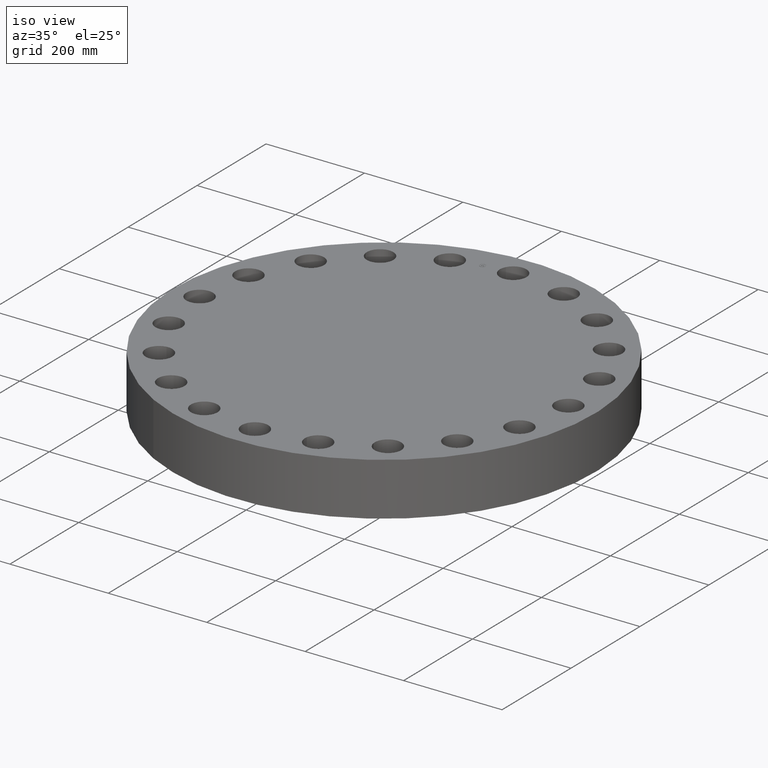
[diagram: clean part render]
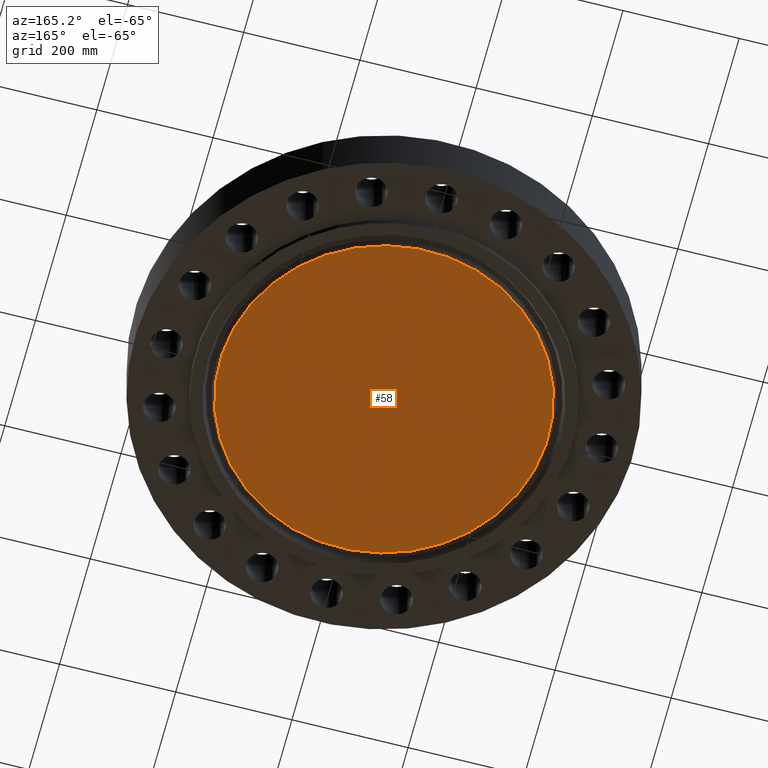
[diagram: tour spotlight — one face highlighted and labeled with its STEP entity id]
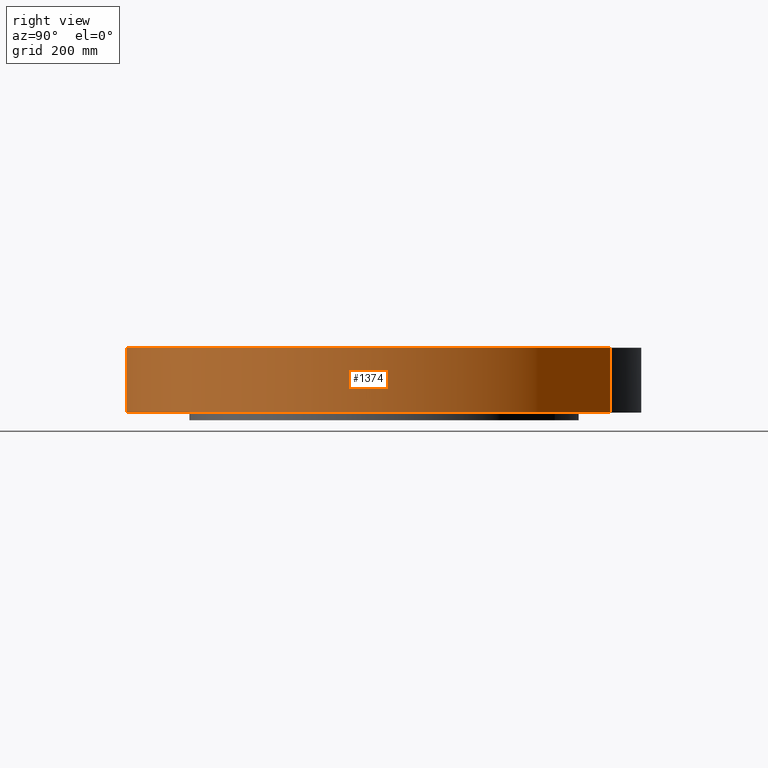
[diagram: tour spotlight — one face highlighted and labeled with its STEP entity id]
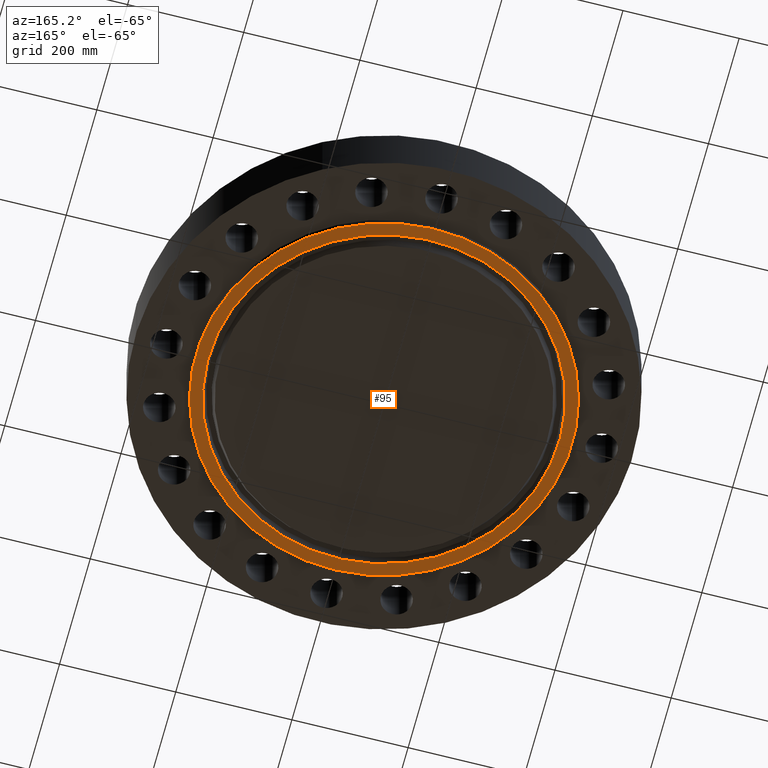
[diagram: tour spotlight — one face highlighted and labeled with its STEP entity id]
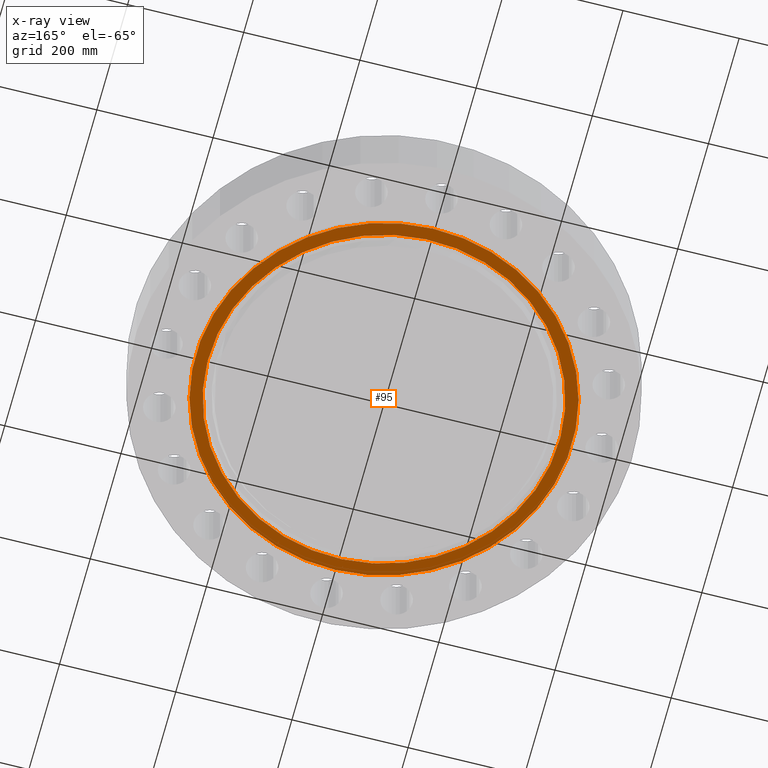
[diagram: x-ray of the same camera — body ghosted, this tour face saturated]
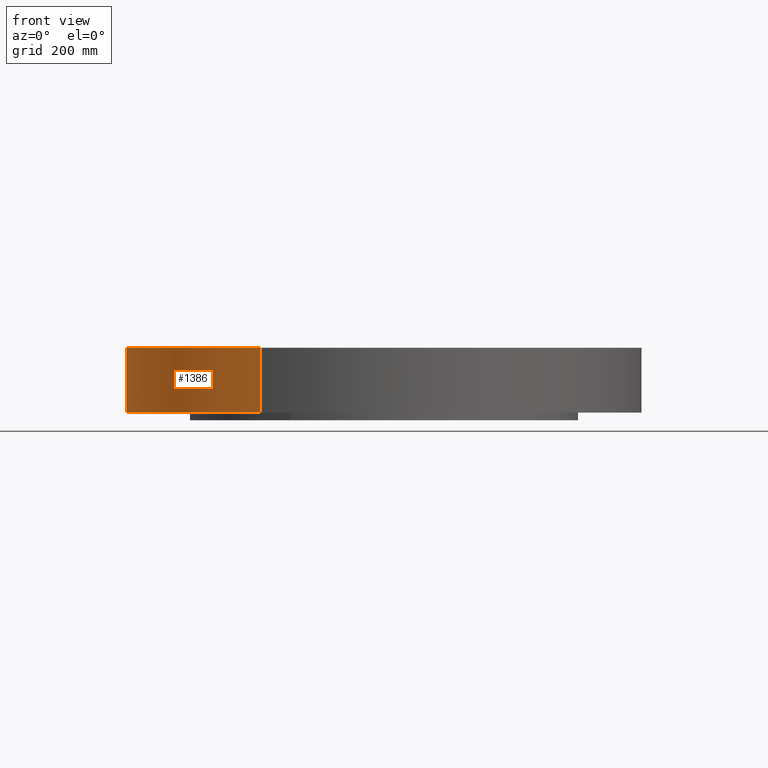
[diagram: tour spotlight — one face highlighted and labeled with its STEP entity id]
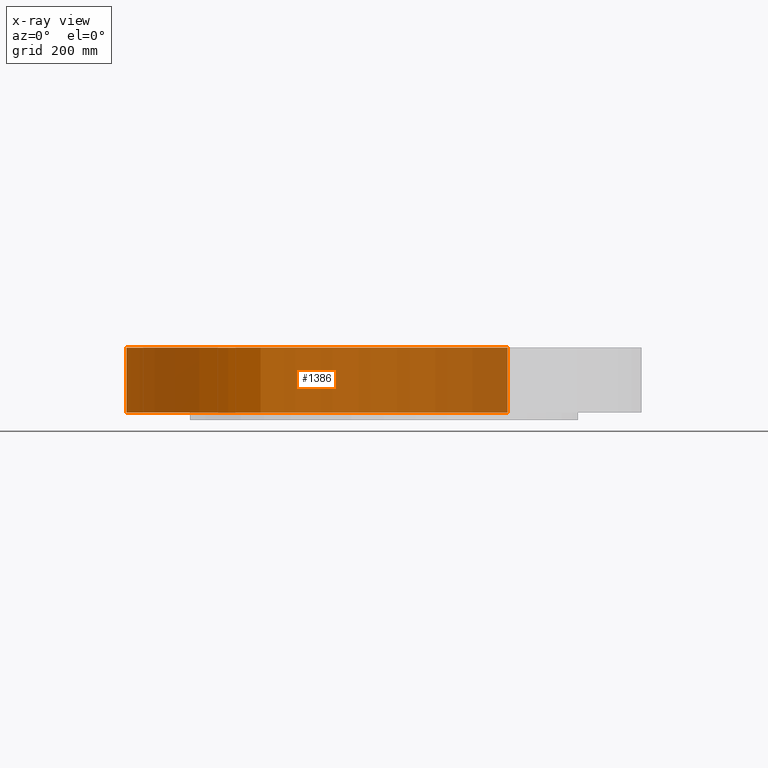
[diagram: x-ray of the same camera — body ghosted, this tour face saturated]
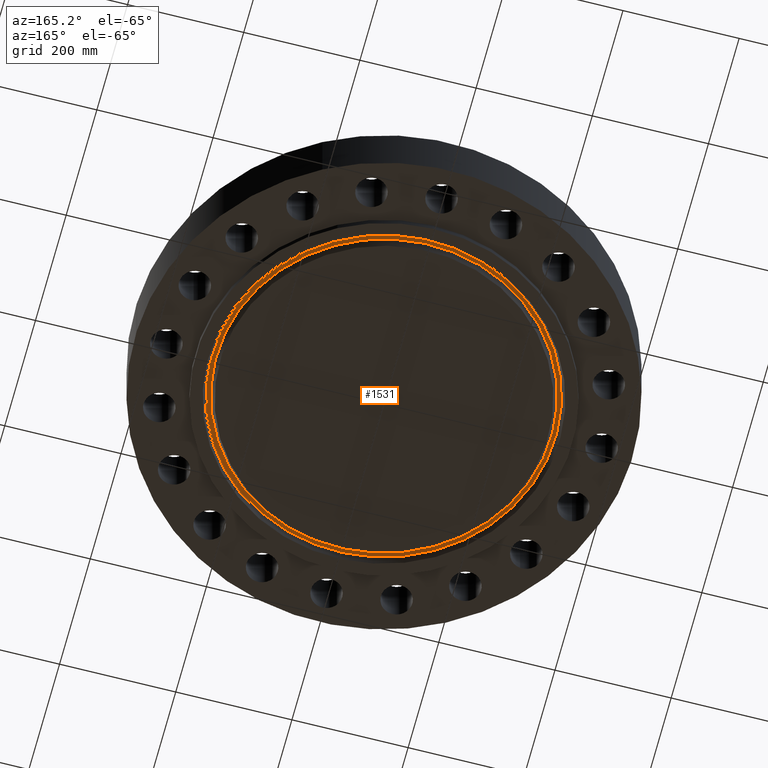
[diagram: tour spotlight — one face highlighted and labeled with its STEP entity id]
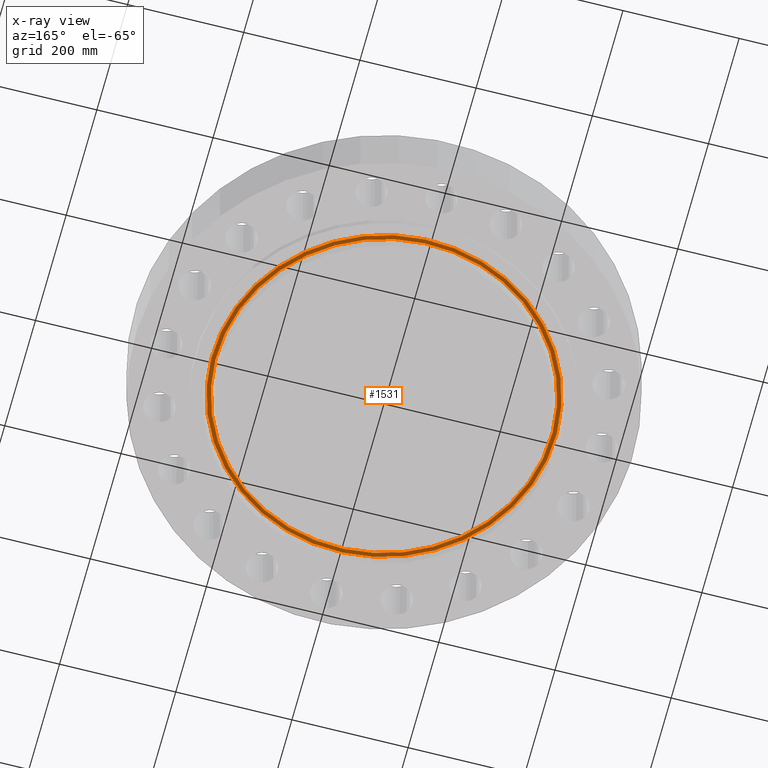
[diagram: x-ray of the same camera — body ghosted, this tour face saturated]
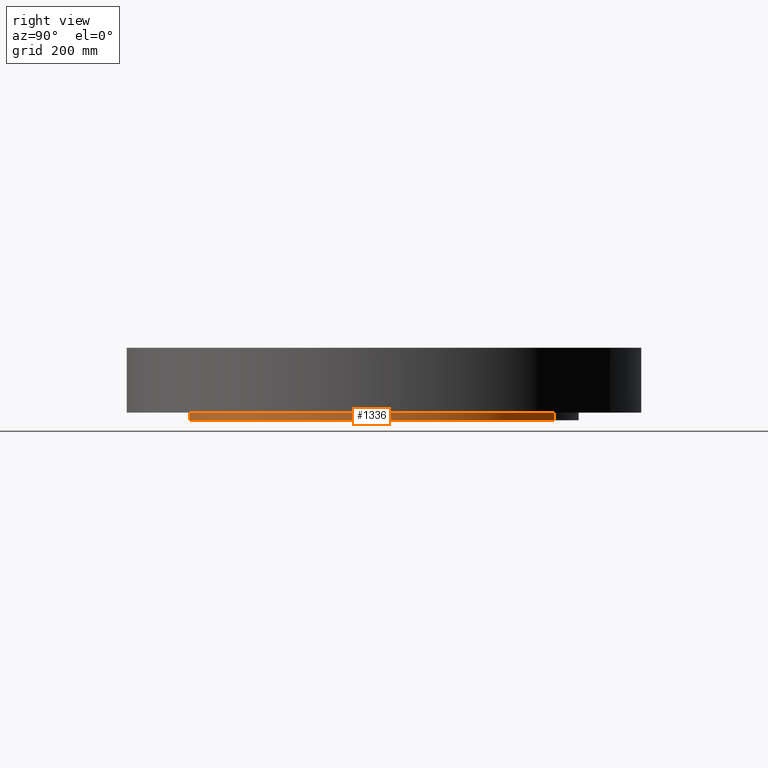
[diagram: tour spotlight — one face highlighted and labeled with its STEP entity id]
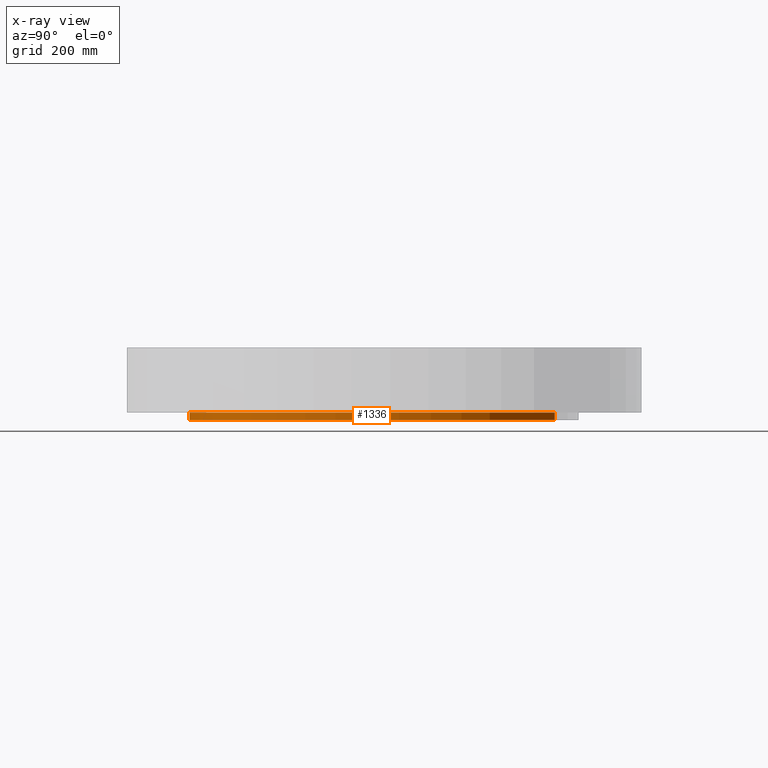
[diagram: x-ray of the same camera — body ghosted, this tour face saturated]
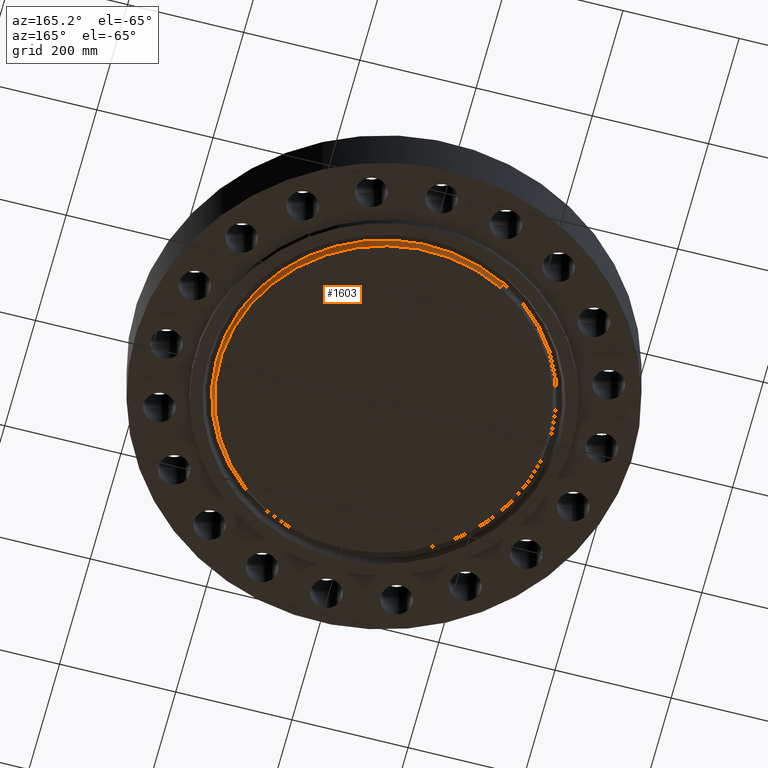
[diagram: tour spotlight — one face highlighted and labeled with its STEP entity id]
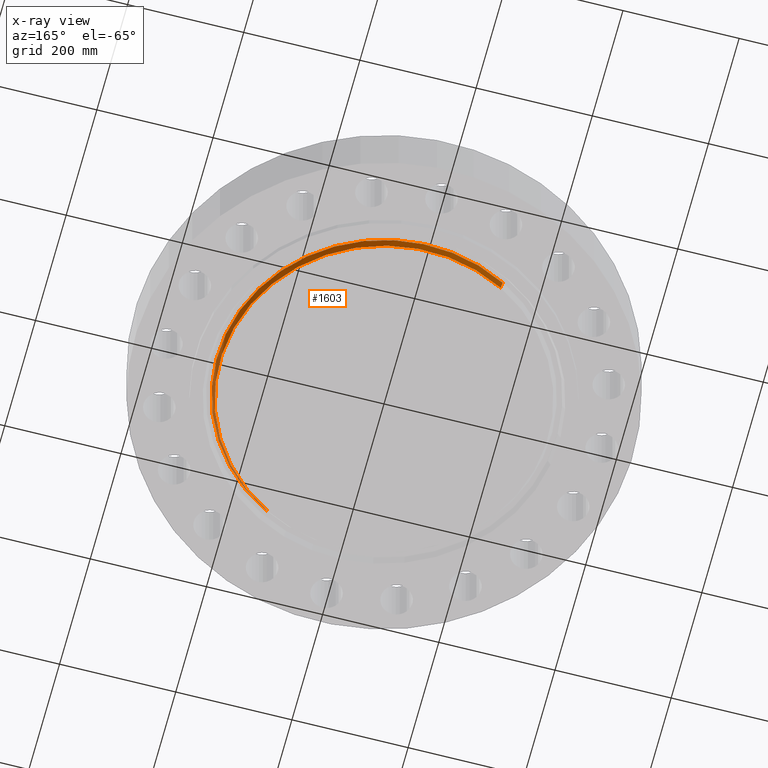
[diagram: x-ray of the same camera — body ghosted, this tour face saturated]
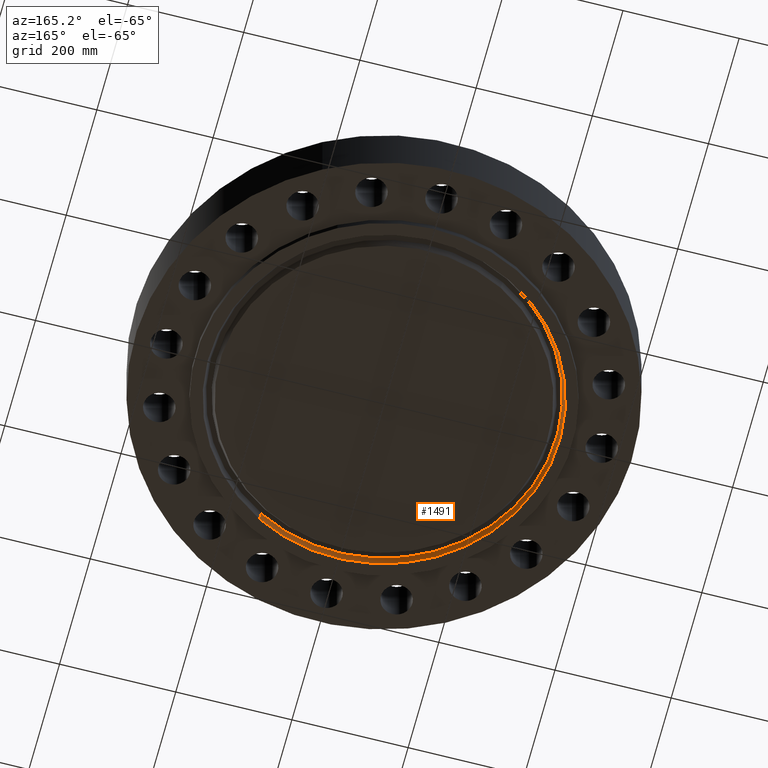
[diagram: tour spotlight — one face highlighted and labeled with its STEP entity id]
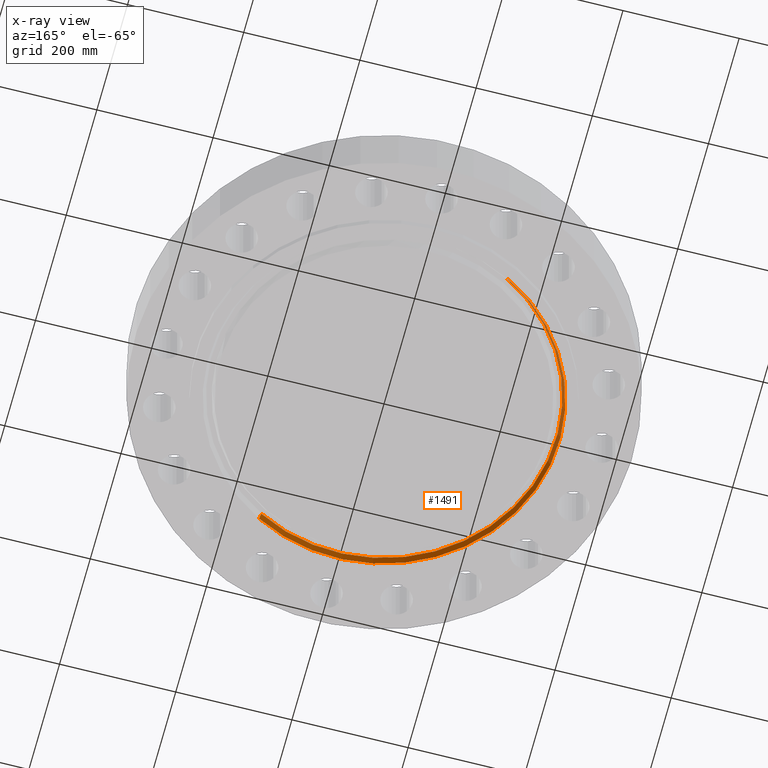
[diagram: x-ray of the same camera — body ghosted, this tour face saturated]
A machine part: a face-by-face anatomy tour. The part has 442 B-rep faces; the first image is the clean iso view, then the 8 largest visible faces are spotlighted one at a time (largest first), each with its STEP entity span.

Face 1 — auxiliary view, entity #58. In plain terms, the highlighted planar face has unit normal (0, 0, -1).
Definition (entity closure, byte-faithful):
#38=AXIS2_PLACEMENT_3D('Plane Axis2P3D',#35,#36,#37) ;
#42=AXIS2_PLACEMENT_3D('Circle Axis2P3D',#40,#41,$) ;
#51=AXIS2_PLACEMENT_3D('Circle Axis2P3D',#49,#50,$) ;
#35=CARTESIAN_POINT('Axis2P3D Location',(0.,0.,-0.500000000002)) ;
#40=CARTESIAN_POINT('Axis2P3D Location',(0.,-2.79741234551E-016,-0.500000000002)) ;
#44=CARTESIAN_POINT('Vertex',(-5.32610610731,9.74937183398,-0.500000000002)) ;
#46=CARTESIAN_POINT('Vertex',(5.32610610731,-9.74937183398,-0.500000000002)) ;
#49=CARTESIAN_POINT('Axis2P3D Location',(2.23792987641E-015,-8.39223703654E-016,-0.500000000002)) ;
#36=DIRECTION('Axis2P3D Direction',(0.,0.,-0.0393700787402)) ;
#37=DIRECTION('Axis2P3D XDirection',(0.0393700787402,0.,0.)) ;
#41=DIRECTION('Axis2P3D Direction',(0.,0.,-0.0393700787402)) ;
#50=DIRECTION('Axis2P3D Direction',(0.,0.,-0.0393700787402)) ;
#55=ORIENTED_EDGE('',*,*,#48,.T.) ;
#56=ORIENTED_EDGE('',*,*,#53,.T.) ;
#58=ADVANCED_FACE('PartBody',(#57),#39,.T.) ;
#43=CIRCLE('generated circle',#42,11.10935) ;
#52=CIRCLE('generated circle',#51,11.10935) ;
#48=EDGE_CURVE('',#45,#47,#43,.T.) ;
#53=EDGE_CURVE('',#47,#45,#52,.T.) ;
#54=EDGE_LOOP('',(#55,#56)) ;
#57=FACE_OUTER_BOUND('',#54,.T.) ;
#39=PLANE('',#38) ;
#45=VERTEX_POINT('',#44) ;
#47=VERTEX_POINT('',#46) ;

Face 2 — right view, entity #1374. In plain terms, the highlighted cylindrical surface (partial cylindrical patch) has radius 428.625 mm, axis along (0, 0, -1).
Definition (entity closure, byte-faithful):
#1195=AXIS2_PLACEMENT_3D('Circle Axis2P3D',#1193,#1194,$) ;
#1347=AXIS2_PLACEMENT_3D('Cylinder Axis2P3D',#1344,#1345,#1346) ;
#1358=AXIS2_PLACEMENT_3D('Circle Axis2P3D',#1356,#1357,$) ;
#1188=CARTESIAN_POINT('Vertex',(-8.09030596398,-14.809205732,1.95818864186E-015)) ;
#1190=CARTESIAN_POINT('Vertex',(8.09030596398,14.809205732,1.95818864186E-015)) ;
#1193=CARTESIAN_POINT('Axis2P3D Location',(0.,0.,0.)) ;
#1344=CARTESIAN_POINT('Axis2P3D Location',(0.,0.,1.87500000001)) ;
#1349=CARTESIAN_POINT('Line Origine',(8.09030596398,14.809205732,2.12500000001)) ;
#1353=CARTESIAN_POINT('Vertex',(8.09030596398,14.809205732,4.25000000002)) ;
#1356=CARTESIAN_POINT('Axis2P3D Location',(0.,0.,4.25000000002)) ;
#1360=CARTESIAN_POINT('Vertex',(-8.09030596398,-14.809205732,4.25000000002)) ;
#1363=CARTESIAN_POINT('Line Origine',(-8.09030596398,-14.809205732,2.12500000001)) ;
#1194=DIRECTION('Axis2P3D Direction',(0.,0.,-0.0393700787402)) ;
#1345=DIRECTION('Axis2P3D Direction',(0.,0.,-0.0393700787402)) ;
#1346=DIRECTION('Axis2P3D XDirection',(-0.0188750212049,-0.0345504945626,0.)) ;
#1350=DIRECTION('Vector Direction',(0.,0.,-0.0393700787402)) ;
#1357=DIRECTION('Axis2P3D Direction',(0.,0.,-0.0393700787402)) ;
#1364=DIRECTION('Vector Direction',(0.,0.,-0.0393700787402)) ;
#1351=VECTOR('Line Direction',#1350,0.0393700787402) ;
#1365=VECTOR('Line Direction',#1364,0.0393700787402) ;
#1369=ORIENTED_EDGE('',*,*,#1197,.F.) ;
#1370=ORIENTED_EDGE('',*,*,#1355,.T.) ;
#1371=ORIENTED_EDGE('',*,*,#1362,.T.) ;
#1372=ORIENTED_EDGE('',*,*,#1367,.F.) ;
#1374=ADVANCED_FACE('PartBody',(#1373),#1348,.T.) ;
#1196=CIRCLE('generated circle',#1195,16.8750000001) ;
#1359=CIRCLE('generated circle',#1358,16.8750000001) ;
#1348=CYLINDRICAL_SURFACE('generated cylinder',#1347,16.8750000001) ;
#1197=EDGE_CURVE('',#1191,#1189,#1196,.T.) ;
#1355=EDGE_CURVE('',#1191,#1354,#1352,.F.) ;
#1362=EDGE_CURVE('',#1354,#1361,#1359,.T.) ;
#1367=EDGE_CURVE('',#1189,#1361,#1366,.F.) ;
#1368=EDGE_LOOP('',(#1369,#1370,#1371,#1372)) ;
#1373=FACE_OUTER_BOUND('',#1368,.T.) ;
#1352=LINE('Line',#1349,#1351) ;
#1366=LINE('Line',#1363,#1365) ;
#1189=VERTEX_POINT('',#1188) ;
#1191=VERTEX_POINT('',#1190) ;
#1354=VERTEX_POINT('',#1353) ;
#1361=VERTEX_POINT('',#1360) ;

Face 3 — auxiliary view, entity #95. An x-ray twin of the same camera follows (body ghosted, this face saturated) — the face is partly hidden behind the body. In plain terms, the highlighted planar face has unit normal (0, 0, -1).
Definition (entity closure, byte-faithful):
#38=AXIS2_PLACEMENT_3D('Plane Axis2P3D',#35,#36,#37) ;
#61=AXIS2_PLACEMENT_3D('Circle Axis2P3D',#59,#60,$) ;
#70=AXIS2_PLACEMENT_3D('Circle Axis2P3D',#68,#69,$) ;
#79=AXIS2_PLACEMENT_3D('Circle Axis2P3D',#77,#78,$) ;
#88=AXIS2_PLACEMENT_3D('Circle Axis2P3D',#86,#87,$) ;
#35=CARTESIAN_POINT('Axis2P3D Location',(0.,0.,-0.500000000002)) ;
#59=CARTESIAN_POINT('Axis2P3D Location',(0.,0.,-0.500000000002)) ;
#63=CARTESIAN_POINT('Vertex',(6.11267561723,11.1891776641,-0.500000000002)) ;
#65=CARTESIAN_POINT('Vertex',(-6.11267561723,-11.1891776641,-0.500000000002)) ;
#68=CARTESIAN_POINT('Axis2P3D Location',(0.,0.,-0.500000000002)) ;
#77=CARTESIAN_POINT('Axis2P3D Location',(8.39223703654E-016,2.23792987641E-015,-0.500000000002)) ;
#81=CARTESIAN_POINT('Vertex',(5.70068128063,-10.4350270896,-0.500000000002)) ;
#83=CARTESIAN_POINT('Vertex',(-5.70068128063,10.4350270896,-0.500000000002)) ;
#86=CARTESIAN_POINT('Axis2P3D Location',(2.23792987641E-015,6.71378962923E-015,-0.500000000002)) ;
#36=DIRECTION('Axis2P3D Direction',(0.,0.,-0.0393700787402)) ;
#37=DIRECTION('Axis2P3D XDirection',(0.0393700787402,0.,0.)) ;
#60=DIRECTION('Axis2P3D Direction',(0.,0.,-0.0393700787402)) ;
#69=DIRECTION('Axis2P3D Direction',(0.,0.,-0.0393700787402)) ;
#78=DIRECTION('Axis2P3D Direction',(0.,0.,-0.0393700787402)) ;
#87=DIRECTION('Axis2P3D Direction',(0.,0.,-0.0393700787402)) ;
#74=ORIENTED_EDGE('',*,*,#67,.T.) ;
#75=ORIENTED_EDGE('',*,*,#72,.T.) ;
#92=ORIENTED_EDGE('',*,*,#85,.F.) ;
#93=ORIENTED_EDGE('',*,*,#90,.F.) ;
#94=FACE_BOUND('',#91,.T.) ;
#95=ADVANCED_FACE('PartBody',(#76,#94),#39,.T.) ;
#62=CIRCLE('generated circle',#61,12.7500000001) ;
#71=CIRCLE('generated circle',#70,12.7500000001) ;
#80=CIRCLE('generated circle',#79,11.89065) ;
#89=CIRCLE('generated circle',#88,11.89065) ;
#67=EDGE_CURVE('',#64,#66,#62,.T.) ;
#72=EDGE_CURVE('',#66,#64,#71,.T.) ;
#85=EDGE_CURVE('',#82,#84,#80,.T.) ;
#90=EDGE_CURVE('',#84,#82,#89,.T.) ;
#73=EDGE_LOOP('',(#74,#75)) ;
#91=EDGE_LOOP('',(#92,#93)) ;
#76=FACE_OUTER_BOUND('',#73,.T.) ;
#39=PLANE('',#38) ;
#64=VERTEX_POINT('',#63) ;
#66=VERTEX_POINT('',#65) ;
#82=VERTEX_POINT('',#81) ;
#84=VERTEX_POINT('',#83) ;

Face 4 — front view, entity #1386. An x-ray twin of the same camera follows (body ghosted, this face saturated) — the face is partly hidden behind the body. In plain terms, the highlighted cylindrical surface (partial cylindrical patch) has radius 428.625 mm, axis along (0, 0, -1).
Definition (entity closure, byte-faithful):
#1186=AXIS2_PLACEMENT_3D('Circle Axis2P3D',#1184,#1185,$) ;
#1347=AXIS2_PLACEMENT_3D('Cylinder Axis2P3D',#1344,#1345,#1346) ;
#1377=AXIS2_PLACEMENT_3D('Circle Axis2P3D',#1375,#1376,$) ;
#1184=CARTESIAN_POINT('Axis2P3D Location',(0.,0.,0.)) ;
#1188=CARTESIAN_POINT('Vertex',(-8.09030596398,-14.809205732,1.95818864186E-015)) ;
#1190=CARTESIAN_POINT('Vertex',(8.09030596398,14.809205732,1.95818864186E-015)) ;
#1344=CARTESIAN_POINT('Axis2P3D Location',(0.,0.,1.87500000001)) ;
#1349=CARTESIAN_POINT('Line Origine',(8.09030596398,14.809205732,2.12500000001)) ;
#1353=CARTESIAN_POINT('Vertex',(8.09030596398,14.809205732,4.25000000002)) ;
#1360=CARTESIAN_POINT('Vertex',(-8.09030596398,-14.809205732,4.25000000002)) ;
#1363=CARTESIAN_POINT('Line Origine',(-8.09030596398,-14.809205732,2.12500000001)) ;
#1375=CARTESIAN_POINT('Axis2P3D Location',(0.,0.,4.25000000002)) ;
#1185=DIRECTION('Axis2P3D Direction',(0.,0.,-0.0393700787402)) ;
#1345=DIRECTION('Axis2P3D Direction',(0.,0.,-0.0393700787402)) ;
#1346=DIRECTION('Axis2P3D XDirection',(-0.0188750212049,-0.0345504945626,0.)) ;
#1350=DIRECTION('Vector Direction',(0.,0.,-0.0393700787402)) ;
#1364=DIRECTION('Vector Direction',(0.,0.,-0.0393700787402)) ;
#1376=DIRECTION('Axis2P3D Direction',(0.,0.,-0.0393700787402)) ;
#1351=VECTOR('Line Direction',#1350,0.0393700787402) ;
#1365=VECTOR('Line Direction',#1364,0.0393700787402) ;
#1381=ORIENTED_EDGE('',*,*,#1192,.F.) ;
#1382=ORIENTED_EDGE('',*,*,#1367,.T.) ;
#1383=ORIENTED_EDGE('',*,*,#1379,.T.) ;
#1384=ORIENTED_EDGE('',*,*,#1355,.F.) ;
#1386=ADVANCED_FACE('PartBody',(#1385),#1348,.T.) ;
#1187=CIRCLE('generated circle',#1186,16.8750000001) ;
#1378=CIRCLE('generated circle',#1377,16.8750000001) ;
#1348=CYLINDRICAL_SURFACE('generated cylinder',#1347,16.8750000001) ;
#1192=EDGE_CURVE('',#1189,#1191,#1187,.T.) ;
#1355=EDGE_CURVE('',#1191,#1354,#1352,.F.) ;
#1367=EDGE_CURVE('',#1189,#1361,#1366,.F.) ;
#1379=EDGE_CURVE('',#1361,#1354,#1378,.T.) ;
#1380=EDGE_LOOP('',(#1381,#1382,#1383,#1384)) ;
#1385=FACE_OUTER_BOUND('',#1380,.T.) ;
#1352=LINE('Line',#1349,#1351) ;
#1366=LINE('Line',#1363,#1365) ;
#1189=VERTEX_POINT('',#1188) ;
#1191=VERTEX_POINT('',#1190) ;
#1354=VERTEX_POINT('',#1353) ;
#1361=VERTEX_POINT('',#1360) ;

Face 5 — auxiliary view, entity #1531. An x-ray twin of the same camera follows (body ghosted, this face saturated) — the face is partly hidden behind the body. In plain terms, the highlighted planar face has unit normal (0, 0, -1).
Definition (entity closure, byte-faithful):
#1182=AXIS2_PLACEMENT_3D('Plane Axis2P3D',#1179,#1180,#1181) ;
#1453=AXIS2_PLACEMENT_3D('Circle Axis2P3D',#1451,#1452,$) ;
#1499=AXIS2_PLACEMENT_3D('Circle Axis2P3D',#1497,#1498,$) ;
#1515=AXIS2_PLACEMENT_3D('Circle Axis2P3D',#1513,#1514,$) ;
#1524=AXIS2_PLACEMENT_3D('Circle Axis2P3D',#1522,#1523,$) ;
#1179=CARTESIAN_POINT('Axis2P3D Location',(0.,12.7500000001,0.)) ;
#1448=CARTESIAN_POINT('Vertex',(-5.57909644433,10.2124675396,-3.58418456769E-016)) ;
#1451=CARTESIAN_POINT('Axis2P3D Location',(0.,0.,-3.58418456769E-016)) ;
#1455=CARTESIAN_POINT('Vertex',(5.57909644433,-10.2124675396,-3.58418456769E-016)) ;
#1497=CARTESIAN_POINT('Axis2P3D Location',(0.,0.,-3.58418456769E-016)) ;
#1513=CARTESIAN_POINT('Axis2P3D Location',(0.,0.,0.)) ;
#1517=CARTESIAN_POINT('Vertex',(5.44769094361,-9.97193138396,5.76966296262E-016)) ;
#1519=CARTESIAN_POINT('Vertex',(-5.44769094361,9.97193138396,5.76966296262E-016)) ;
#1522=CARTESIAN_POINT('Axis2P3D Location',(0.,0.,0.)) ;
#1180=DIRECTION('Axis2P3D Direction',(0.,0.,-0.0393700787402)) ;
#1181=DIRECTION('Axis2P3D XDirection',(0.0393700787402,0.,0.)) ;
#1452=DIRECTION('Axis2P3D Direction',(0.,0.,0.0393700787402)) ;
#1498=DIRECTION('Axis2P3D Direction',(0.,0.,0.0393700787402)) ;
#1514=DIRECTION('Axis2P3D Direction',(0.,0.,-0.0393700787402)) ;
#1523=DIRECTION('Axis2P3D Direction',(0.,0.,-0.0393700787402)) ;
#1510=ORIENTED_EDGE('',*,*,#1457,.F.) ;
#1511=ORIENTED_EDGE('',*,*,#1501,.F.) ;
#1528=ORIENTED_EDGE('',*,*,#1521,.T.) ;
#1529=ORIENTED_EDGE('',*,*,#1526,.T.) ;
#1530=FACE_BOUND('',#1527,.T.) ;
#1531=ADVANCED_FACE('PartBody',(#1512,#1530),#1183,.T.) ;
#1454=CIRCLE('generated circle',#1453,11.6370447444) ;
#1500=CIRCLE('generated circle',#1499,11.6370447444) ;
#1516=CIRCLE('generated circle',#1515,11.3629552557) ;
#1525=CIRCLE('generated circle',#1524,11.3629552557) ;
#1457=EDGE_CURVE('',#1449,#1456,#1454,.T.) ;
#1501=EDGE_CURVE('',#1456,#1449,#1500,.T.) ;
#1521=EDGE_CURVE('',#1518,#1520,#1516,.F.) ;
#1526=EDGE_CURVE('',#1520,#1518,#1525,.F.) ;
#1509=EDGE_LOOP('',(#1510,#1511)) ;
#1527=EDGE_LOOP('',(#1528,#1529)) ;
#1512=FACE_OUTER_BOUND('',#1509,.T.) ;
#1183=PLANE('',#1182) ;
#1449=VERTEX_POINT('',#1448) ;
#1456=VERTEX_POINT('',#1455) ;
#1518=VERTEX_POINT('',#1517) ;
#1520=VERTEX_POINT('',#1519) ;

Face 6 — right view, entity #1336. An x-ray twin of the same camera follows (body ghosted, this face saturated) — the face is partly hidden behind the body. In plain terms, the highlighted cylindrical surface (partial cylindrical patch) has radius 323.85 mm, axis along (0, 0, -1).
Definition (entity closure, byte-faithful):
#61=AXIS2_PLACEMENT_3D('Circle Axis2P3D',#59,#60,$) ;
#1222=AXIS2_PLACEMENT_3D('Circle Axis2P3D',#1220,#1221,$) ;
#1318=AXIS2_PLACEMENT_3D('Cylinder Axis2P3D',#1315,#1316,#1317) ;
#59=CARTESIAN_POINT('Axis2P3D Location',(0.,0.,-0.500000000002)) ;
#63=CARTESIAN_POINT('Vertex',(6.11267561723,11.1891776641,-0.500000000002)) ;
#65=CARTESIAN_POINT('Vertex',(-6.11267561723,-11.1891776641,-0.500000000002)) ;
#1220=CARTESIAN_POINT('Axis2P3D Location',(0.,0.,0.)) ;
#1224=CARTESIAN_POINT('Vertex',(6.11267561723,11.1891776641,1.39870617276E-015)) ;
#1226=CARTESIAN_POINT('Vertex',(-6.11267561723,-11.1891776641,1.39870617276E-015)) ;
#1315=CARTESIAN_POINT('Axis2P3D Location',(0.,0.,1.87500000001)) ;
#1320=CARTESIAN_POINT('Line Origine',(6.11267561723,11.1891776641,-0.250000000001)) ;
#1325=CARTESIAN_POINT('Line Origine',(-6.11267561723,-11.1891776641,-0.250000000001)) ;
#60=DIRECTION('Axis2P3D Direction',(0.,0.,-0.0393700787402)) ;
#1221=DIRECTION('Axis2P3D Direction',(0.,0.,-0.0393700787402)) ;
#1316=DIRECTION('Axis2P3D Direction',(0.,0.,-0.0393700787402)) ;
#1317=DIRECTION('Axis2P3D XDirection',(-0.0188750212049,-0.0345504945626,0.)) ;
#1321=DIRECTION('Vector Direction',(0.,0.,-0.0393700787402)) ;
#1326=DIRECTION('Vector Direction',(0.,0.,-0.0393700787402)) ;
#1322=VECTOR('Line Direction',#1321,0.0393700787402) ;
#1327=VECTOR('Line Direction',#1326,0.0393700787402) ;
#1331=ORIENTED_EDGE('',*,*,#67,.F.) ;
#1332=ORIENTED_EDGE('',*,*,#1324,.T.) ;
#1333=ORIENTED_EDGE('',*,*,#1228,.T.) ;
#1334=ORIENTED_EDGE('',*,*,#1329,.F.) ;
#1336=ADVANCED_FACE('PartBody',(#1335),#1319,.T.) ;
#62=CIRCLE('generated circle',#61,12.7500000001) ;
#1223=CIRCLE('generated circle',#1222,12.7500000001) ;
#1319=CYLINDRICAL_SURFACE('generated cylinder',#1318,12.7500000001) ;
#67=EDGE_CURVE('',#64,#66,#62,.T.) ;
#1228=EDGE_CURVE('',#1225,#1227,#1223,.T.) ;
#1324=EDGE_CURVE('',#64,#1225,#1323,.F.) ;
#1329=EDGE_CURVE('',#66,#1227,#1328,.F.) ;
#1330=EDGE_LOOP('',(#1331,#1332,#1333,#1334)) ;
#1335=FACE_OUTER_BOUND('',#1330,.T.) ;
#1323=LINE('Line',#1320,#1322) ;
#1328=LINE('Line',#1325,#1327) ;
#64=VERTEX_POINT('',#63) ;
#66=VERTEX_POINT('',#65) ;
#1225=VERTEX_POINT('',#1224) ;
#1227=VERTEX_POINT('',#1226) ;

Face 7 — auxiliary view, entity #1603. An x-ray twin of the same camera follows (body ghosted, this face saturated) — the face is partly hidden behind the body. In plain terms, the highlighted conical surface has half-angle 23 deg.
Definition (entity closure, byte-faithful):
#42=AXIS2_PLACEMENT_3D('Circle Axis2P3D',#40,#41,$) ;
#1553=AXIS2_PLACEMENT_3D('Circle Axis2P3D',#1551,#1552,$) ;
#1585=AXIS2_PLACEMENT_3D('Cone Axis2P3D',#1582,#1583,#1584) ;
#40=CARTESIAN_POINT('Axis2P3D Location',(0.,-2.79741234551E-016,-0.500000000002)) ;
#44=CARTESIAN_POINT('Vertex',(-5.32610610731,9.74937183398,-0.500000000002)) ;
#46=CARTESIAN_POINT('Vertex',(5.32610610731,-9.74937183398,-0.500000000002)) ;
#1548=CARTESIAN_POINT('Vertex',(5.42010884766,-9.92144269599,-0.0380793044696)) ;
#1551=CARTESIAN_POINT('Axis2P3D Location',(0.,0.,-0.0380793044696)) ;
#1555=CARTESIAN_POINT('Vertex',(-5.42010884766,9.92144269599,-0.0380793044696)) ;
#1582=CARTESIAN_POINT('Axis2P3D Location',(0.,0.,-0.560000000002)) ;
#1587=CARTESIAN_POINT('Line Origine',(-5.37310747749,9.83540726499,-0.269039652236)) ;
#1592=CARTESIAN_POINT('Line Origine',(5.37310747749,-9.83540726499,-0.269039652236)) ;
#41=DIRECTION('Axis2P3D Direction',(0.,0.,-0.0393700787402)) ;
#1552=DIRECTION('Axis2P3D Direction',(0.,0.,0.0393700787402)) ;
#1583=DIRECTION('Axis2P3D Direction',(0.,0.,0.0393700787402)) ;
#1584=DIRECTION('Axis2P3D XDirection',(-0.0188750212049,0.0345504945626,0.)) ;
#1588=DIRECTION('Vector Direction',(-0.00737505833565,0.0134999537303,0.0362403485611)) ;
#1593=DIRECTION('Vector Direction',(0.00737505833565,-0.0134999537303,0.0362403485611)) ;
#1589=VECTOR('Line Direction',#1588,0.0393700787402) ;
#1594=VECTOR('Line Direction',#1593,0.0393700787402) ;
#1598=ORIENTED_EDGE('',*,*,#1591,.F.) ;
#1599=ORIENTED_EDGE('',*,*,#1557,.F.) ;
#1600=ORIENTED_EDGE('',*,*,#1596,.T.) ;
#1601=ORIENTED_EDGE('',*,*,#48,.F.) ;
#1603=ADVANCED_FACE('PartBody',(#1602),#1586,.T.) ;
#43=CIRCLE('generated circle',#42,11.10935) ;
#1554=CIRCLE('generated circle',#1553,11.3054237024) ;
#1586=CONICAL_SURFACE('Cone',#1585,11.0838815111,0.401425727959) ;
#48=EDGE_CURVE('',#45,#47,#43,.T.) ;
#1557=EDGE_CURVE('',#1549,#1556,#1554,.T.) ;
#1591=EDGE_CURVE('',#1556,#45,#1590,.F.) ;
#1596=EDGE_CURVE('',#1549,#47,#1595,.F.) ;
#1597=EDGE_LOOP('',(#1598,#1599,#1600,#1601)) ;
#1602=FACE_OUTER_BOUND('',#1597,.T.) ;
#1590=LINE('Line',#1587,#1589) ;
#1595=LINE('Line',#1592,#1594) ;
#45=VERTEX_POINT('',#44) ;
#47=VERTEX_POINT('',#46) ;
#1549=VERTEX_POINT('',#1548) ;
#1556=VERTEX_POINT('',#1555) ;

Face 8 — auxiliary view, entity #1491. An x-ray twin of the same camera follows (body ghosted, this face saturated) — the face is partly hidden behind the body. In plain terms, the highlighted conical surface has half-angle 23 deg.
Definition (entity closure, byte-faithful):
#79=AXIS2_PLACEMENT_3D('Circle Axis2P3D',#77,#78,$) ;
#1437=AXIS2_PLACEMENT_3D('Circle Axis2P3D',#1435,#1436,$) ;
#1473=AXIS2_PLACEMENT_3D('Cone Axis2P3D',#1470,#1471,#1472) ;
#77=CARTESIAN_POINT('Axis2P3D Location',(8.39223703654E-016,2.23792987641E-015,-0.500000000002)) ;
#81=CARTESIAN_POINT('Vertex',(5.70068128063,-10.4350270896,-0.500000000002)) ;
#83=CARTESIAN_POINT('Vertex',(-5.70068128063,10.4350270896,-0.500000000002)) ;
#1435=CARTESIAN_POINT('Axis2P3D Location',(0.,0.,-0.0380793044696)) ;
#1439=CARTESIAN_POINT('Vertex',(-5.60667854028,10.2629562276,-0.0380793044696)) ;
#1441=CARTESIAN_POINT('Vertex',(5.60667854028,-10.2629562276,-0.0380793044696)) ;
#1470=CARTESIAN_POINT('Axis2P3D Location',(0.,0.,-0.0380793044696)) ;
#1475=CARTESIAN_POINT('Line Origine',(-5.65367991045,10.3489916586,-0.269039652236)) ;
#1480=CARTESIAN_POINT('Line Origine',(5.65367991045,-10.3489916586,-0.269039652236)) ;
#78=DIRECTION('Axis2P3D Direction',(0.,0.,-0.0393700787402)) ;
#1436=DIRECTION('Axis2P3D Direction',(0.,0.,0.0393700787402)) ;
#1471=DIRECTION('Axis2P3D Direction',(-0.,-0.,-0.0393700787402)) ;
#1472=DIRECTION('Axis2P3D XDirection',(-0.0188750212049,0.0345504945626,0.)) ;
#1476=DIRECTION('Vector Direction',(-0.00737505833565,0.0134999537303,-0.0362403485611)) ;
#1481=DIRECTION('Vector Direction',(0.00737505833565,-0.0134999537303,-0.0362403485611)) ;
#1477=VECTOR('Line Direction',#1476,0.0393700787402) ;
#1482=VECTOR('Line Direction',#1481,0.0393700787402) ;
#1486=ORIENTED_EDGE('',*,*,#85,.T.) ;
#1487=ORIENTED_EDGE('',*,*,#1479,.T.) ;
#1488=ORIENTED_EDGE('',*,*,#1443,.T.) ;
#1489=ORIENTED_EDGE('',*,*,#1484,.F.) ;
#1491=ADVANCED_FACE('PartBody',(#1490),#1474,.F.) ;
#80=CIRCLE('generated circle',#79,11.89065) ;
#1438=CIRCLE('generated circle',#1437,11.6945762977) ;
#1474=CONICAL_SURFACE('Cone',#1473,11.6945762977,0.401425727959) ;
#85=EDGE_CURVE('',#82,#84,#80,.T.) ;
#1443=EDGE_CURVE('',#1440,#1442,#1438,.T.) ;
#1479=EDGE_CURVE('',#84,#1440,#1478,.F.) ;
#1484=EDGE_CURVE('',#82,#1442,#1483,.F.) ;
#1485=EDGE_LOOP('',(#1486,#1487,#1488,#1489)) ;
#1490=FACE_OUTER_BOUND('',#1485,.T.) ;
#1478=LINE('Line',#1475,#1477) ;
#1483=LINE('Line',#1480,#1482) ;
#82=VERTEX_POINT('',#81) ;
#84=VERTEX_POINT('',#83) ;
#1440=VERTEX_POINT('',#1439) ;
#1442=VERTEX_POINT('',#1441) ;